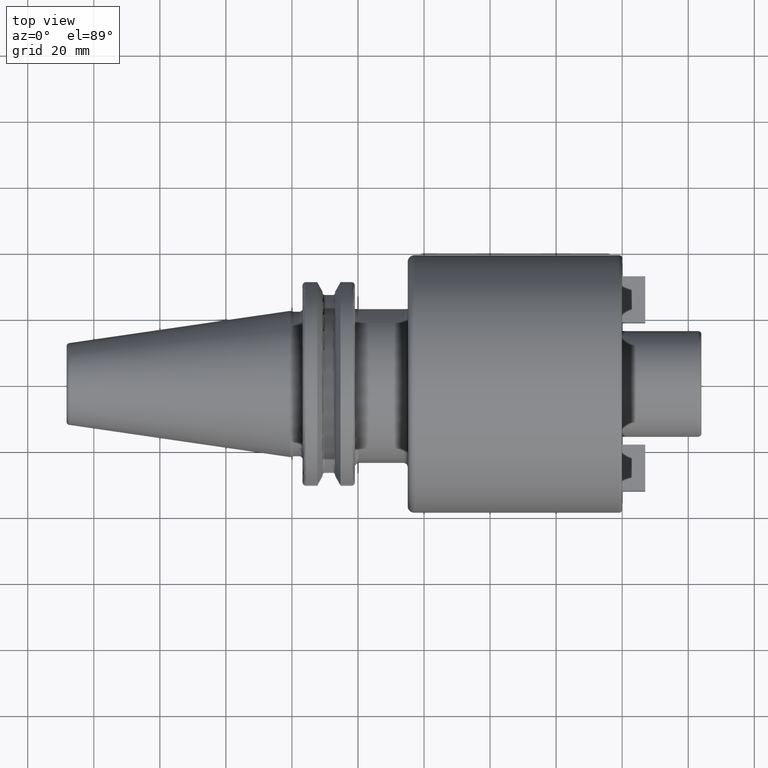
[diagram: clean part render]
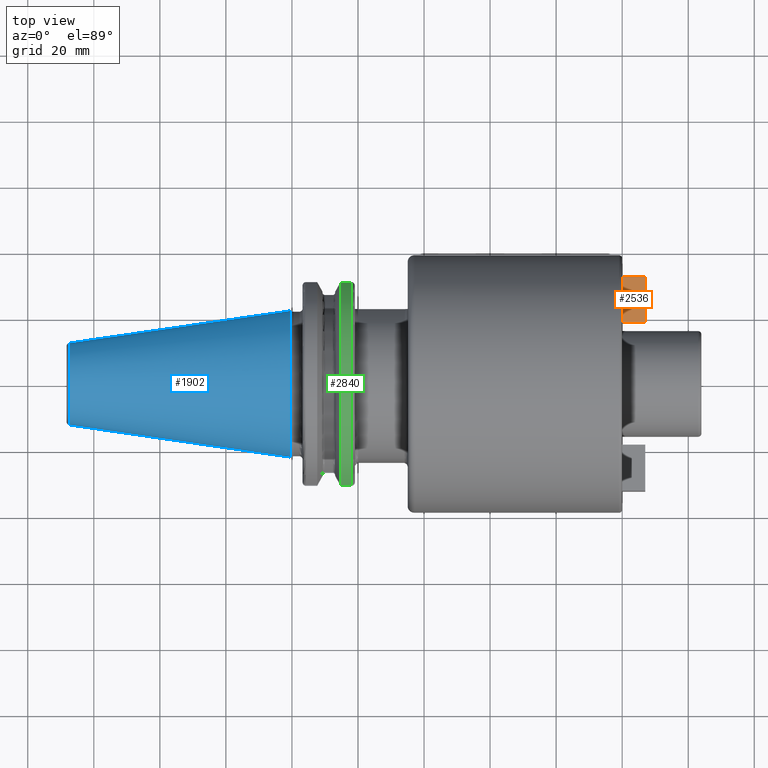
[diagram: same view with three faces highlighted in distinct colors, each labeled with its STEP entity id]
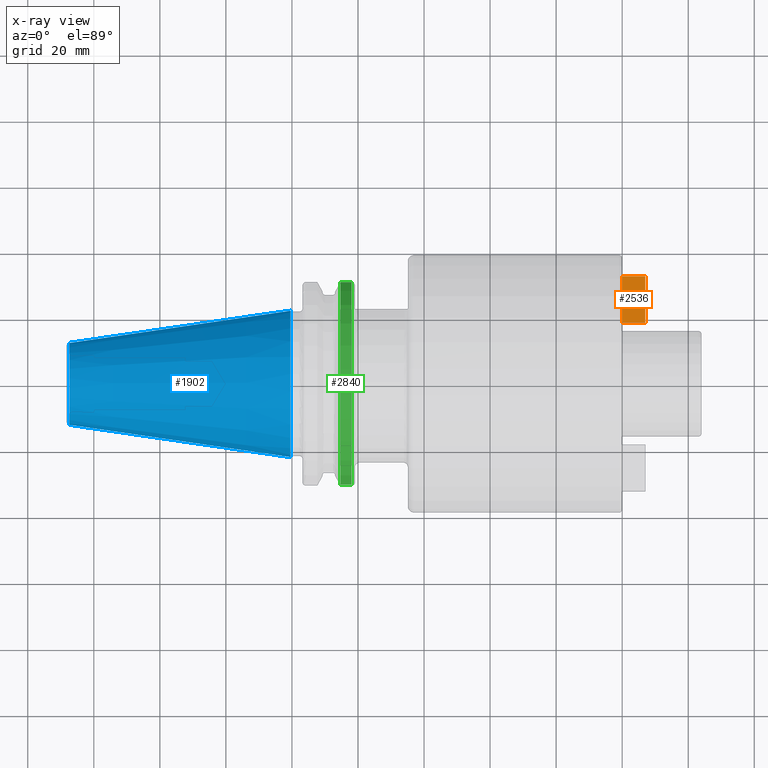
[diagram: x-ray of the same camera — body ghosted, the three highlighted faces saturated]
A machine part, top view with three faces highlighted in distinct colors.
The next image is the same camera in x-ray (body ghosted, the three faces saturated) — at least one of them is partly hidden behind the body in this view.
Their STEP definitions:

[orange] entity #2536 — the highlighted planar face has unit normal (0, 0, 1).
#435=DIRECTION('',(0.E0,-1.E0,0.E0));
#436=VECTOR('',#435,1.4E1);
#437=CARTESIAN_POINT('',(1.E2,3.25E1,7.E0));
#438=LINE('',#437,#436);
#541=DIRECTION('',(1.E0,0.E0,0.E0));
#542=VECTOR('',#541,7.E0);
#543=CARTESIAN_POINT('',(1.E2,3.25E1,7.E0));
#544=LINE('',#543,#542);
#553=DIRECTION('',(1.E0,0.E0,0.E0));
#554=VECTOR('',#553,7.E0);
#555=CARTESIAN_POINT('',(1.E2,1.85E1,7.E0));
#556=LINE('',#555,#554);
#557=DIRECTION('',(0.E0,-1.E0,0.E0));
#558=VECTOR('',#557,1.4E1);
#559=CARTESIAN_POINT('',(1.07E2,3.25E1,7.E0));
#560=LINE('',#559,#558);
#1776=CARTESIAN_POINT('',(1.07E2,3.25E1,7.E0));
#1777=CARTESIAN_POINT('',(1.07E2,1.85E1,7.E0));
#1778=VERTEX_POINT('',#1776);
#1779=VERTEX_POINT('',#1777);
#1792=CARTESIAN_POINT('',(1.E2,3.25E1,7.E0));
#1793=CARTESIAN_POINT('',(1.E2,1.85E1,7.E0));
#1794=VERTEX_POINT('',#1792);
#1795=VERTEX_POINT('',#1793);
#2522=CARTESIAN_POINT('',(1.E2,3.25E1,7.E0));
#2523=DIRECTION('',(0.E0,0.E0,1.E0));
#2524=DIRECTION('',(0.E0,-1.E0,0.E0));
#2525=AXIS2_PLACEMENT_3D('',#2522,#2523,#2524);
#2526=PLANE('',#2525);
#2527=ORIENTED_EDGE('',*,*,#2377,.F.);
#2529=ORIENTED_EDGE('',*,*,#2528,.T.);
#2531=ORIENTED_EDGE('',*,*,#2530,.T.);
#2533=ORIENTED_EDGE('',*,*,#2532,.F.);
#2534=EDGE_LOOP('',(#2527,#2529,#2531,#2533));
#2535=FACE_OUTER_BOUND('',#2534,.F.);
#2536=ADVANCED_FACE('',(#2535),#2526,.T.);
#2377=EDGE_CURVE('',#1794,#1795,#438,.T.);
#2528=EDGE_CURVE('',#1794,#1778,#544,.T.);
#2530=EDGE_CURVE('',#1778,#1779,#560,.T.);
#2532=EDGE_CURVE('',#1795,#1779,#556,.T.);

[blue] entity #1902 — the highlighted conical surface has half-angle 8.298 deg.
#37=CARTESIAN_POINT('',(-6.743710273571E1,0.E0,0.E0));
#38=DIRECTION('',(1.E0,0.E0,0.E0));
#39=DIRECTION('',(0.E0,1.E0,0.E0));
#40=AXIS2_PLACEMENT_3D('',#37,#38,#39);
#42=CARTESIAN_POINT('',(-4.896823332305E-1,0.E0,0.E0));
#43=DIRECTION('',(1.E0,0.E0,0.E0));
#44=DIRECTION('',(0.E0,1.E0,0.E0));
#45=AXIS2_PLACEMENT_3D('',#42,#43,#44);
#47=DIRECTION('',(-9.895312636440E-1,-1.443186691705E-1,0.E0));
#48=VECTOR('',#47,6.765568998391E1);
#49=CARTESIAN_POINT('',(-4.896823332305E-1,2.215358204157E1,0.E0));
#50=LINE('',#49,#48);
#51=DIRECTION('',(-9.895312636440E-1,1.443186691705E-1,0.E0));
#52=VECTOR('',#51,6.765568998391E1);
#53=CARTESIAN_POINT('',(-4.896823332305E-1,-2.215358204157E1,0.E0));
#54=LINE('',#53,#52);
#1520=CARTESIAN_POINT('',(-6.743710273571E1,1.238960290128E1,0.E0));
#1522=VERTEX_POINT('',#1520);
#1524=CARTESIAN_POINT('',(-6.743710273571E1,-1.238960290128E1,0.E0));
#1526=VERTEX_POINT('',#1524);
#1588=CARTESIAN_POINT('',(-4.896823332305E-1,2.215358204157E1,0.E0));
#1589=VERTEX_POINT('',#1588);
#1590=CARTESIAN_POINT('',(-4.896823332305E-1,-2.215358204157E1,0.E0));
#1591=VERTEX_POINT('',#1590);
#1888=CARTESIAN_POINT('',(-3.396339253447E1,0.E0,0.E0));
#1889=DIRECTION('',(1.E0,0.E0,0.E0));
#1890=DIRECTION('',(0.E0,-1.E0,0.E0));
#1891=AXIS2_PLACEMENT_3D('',#1888,#1889,#1890);
#1892=CONICAL_SURFACE('',#1891,1.727159247143E1,8.297826828206E0);
#1894=ORIENTED_EDGE('',*,*,#1893,.F.);
#1896=ORIENTED_EDGE('',*,*,#1895,.T.);
#1898=ORIENTED_EDGE('',*,*,#1897,.T.);
#1899=ORIENTED_EDGE('',*,*,#1881,.F.);
#1900=EDGE_LOOP('',(#1894,#1896,#1898,#1899));
#1901=FACE_OUTER_BOUND('',#1900,.F.);
#1902=ADVANCED_FACE('',(#1901),#1892,.T.);
#41=CIRCLE('',#40,1.238960290128E1);
#46=CIRCLE('',#45,2.215358204157E1);
#1881=EDGE_CURVE('',#1522,#1526,#41,.T.);
#1893=EDGE_CURVE('',#1589,#1522,#50,.T.);
#1895=EDGE_CURVE('',#1589,#1591,#46,.T.);
#1897=EDGE_CURVE('',#1591,#1526,#54,.T.);

[green] entity #2840 — the highlighted cylindrical surface (partial cylindrical patch) has radius 31.7625 mm, axis along (1, 0, 0).
#768=DIRECTION('',(1.E0,0.E0,0.E0));
#769=VECTOR('',#768,3.345946479578E0);
#770=CARTESIAN_POINT('',(1.470405352042E1,3.071231684927E1,8.1E0));
#771=LINE('',#770,#769);
#772=CARTESIAN_POINT('',(1.805E1,0.E0,0.E0));
#773=DIRECTION('',(1.E0,0.E0,0.E0));
#774=DIRECTION('',(0.E0,9.669363825036E-1,2.550177095632E-1));
#775=AXIS2_PLACEMENT_3D('',#772,#773,#774);
#777=DIRECTION('',(1.E0,0.E0,0.E0));
#778=VECTOR('',#777,3.345946479578E0);
#779=CARTESIAN_POINT('',(1.470405352042E1,-3.071231684927E1,8.1E0));
#780=LINE('',#779,#778);
#781=CARTESIAN_POINT('',(1.470405352042E1,0.E0,0.E0));
#782=DIRECTION('',(1.E0,0.E0,0.E0));
#783=DIRECTION('',(0.E0,9.669363825036E-1,2.550177095632E-1));
#784=AXIS2_PLACEMENT_3D('',#781,#782,#783);
#945=CARTESIAN_POINT('',(1.470405352042E1,3.071231684927E1,8.1E0));
#957=CARTESIAN_POINT('',(1.470405352042E1,-3.071231684927E1,8.1E0));
#1644=VERTEX_POINT('',#945);
#1645=VERTEX_POINT('',#957);
#1660=CARTESIAN_POINT('',(1.805E1,3.071231684927E1,8.1E0));
#1661=VERTEX_POINT('',#1660);
#1664=CARTESIAN_POINT('',(1.805E1,-3.071231684927E1,8.1E0));
#1665=VERTEX_POINT('',#1664);
#2828=CARTESIAN_POINT('',(-7.2615E1,0.E0,0.E0));
#2829=DIRECTION('',(1.E0,0.E0,0.E0));
#2830=DIRECTION('',(0.E0,-1.E0,0.E0));
#2831=AXIS2_PLACEMENT_3D('',#2828,#2829,#2830);
#2832=CYLINDRICAL_SURFACE('',#2831,3.17625E1);
#2833=ORIENTED_EDGE('',*,*,#2117,.T.);
#2834=ORIENTED_EDGE('',*,*,#2151,.T.);
#2835=ORIENTED_EDGE('',*,*,#2183,.F.);
#2837=ORIENTED_EDGE('',*,*,#2836,.F.);
#2838=EDGE_LOOP('',(#2833,#2834,#2835,#2837));
#2839=FACE_OUTER_BOUND('',#2838,.F.);
#2840=ADVANCED_FACE('',(#2839),#2832,.T.);
#776=CIRCLE('',#775,3.17625E1);
#785=CIRCLE('',#784,3.17625E1);
#2117=EDGE_CURVE('',#1644,#1661,#771,.T.);
#2151=EDGE_CURVE('',#1661,#1665,#776,.T.);
#2183=EDGE_CURVE('',#1645,#1665,#780,.T.);
#2836=EDGE_CURVE('',#1644,#1645,#785,.T.);